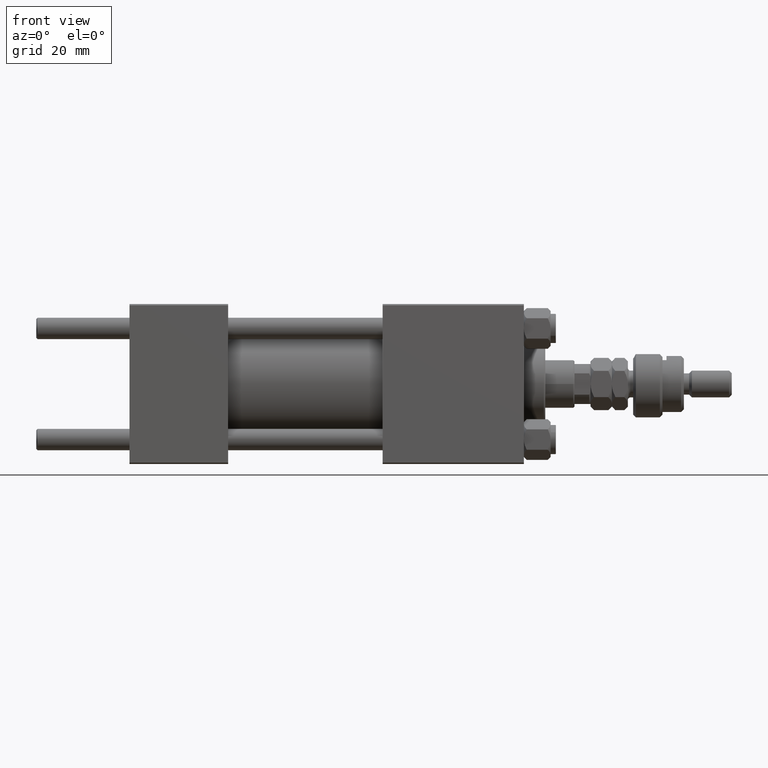
[diagram: clean part render]
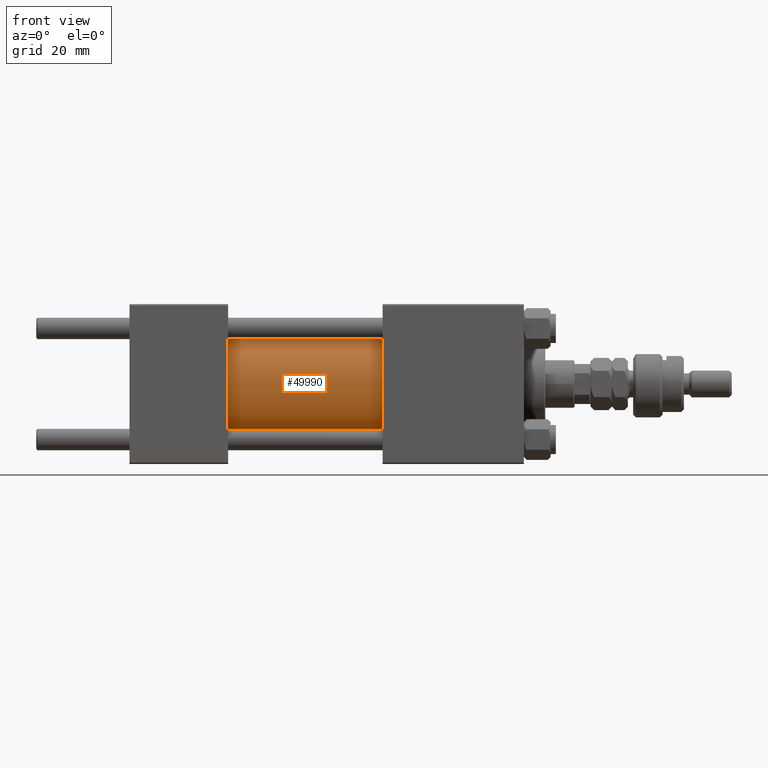
[diagram: same view with one face highlighted and labeled with its STEP entity id]
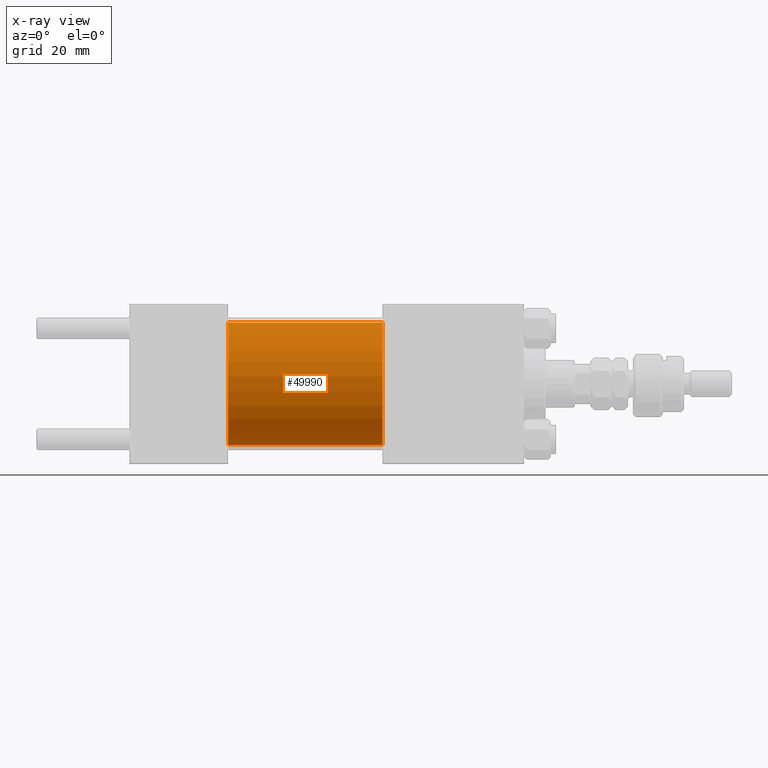
[diagram: x-ray of the same camera — body ghosted, the highlighted face saturated]
A machine part, front view. The second image highlights one B-rep face of the part: STEP entity #49990.
The next image is the same camera in x-ray: the body ghosted, the highlighted face saturated — about 0% of this face is hidden behind the body in this view.
In plain terms, the highlighted cylindrical surface (partial cylindrical patch) has radius 23 mm, axis along (-1, -0, -0).
Its self-contained STEP definition (entity closure, byte-faithful):
#830 = CIRCLE ( 'NONE', #30618, 23.00000000000000000 ) ;
#1299 = VERTEX_POINT ( 'NONE', #23040 ) ;
#1618 = CARTESIAN_POINT ( 'NONE',  ( 95.00000000000000000, 2.816687638038911957E-15, -23.00000000000000000 ) ) ;
#1888 = LINE ( 'NONE', #1618, #26978 ) ;
#4365 = VERTEX_POINT ( 'NONE', #24972 ) ;
#5190 = VERTEX_POINT ( 'NONE', #11388 ) ;
#6035 = LINE ( 'NONE', #22016, #19695 ) ;
#6630 = DIRECTION ( 'NONE',  ( 0.000000000000000000, 0.000000000000000000, 1.000000000000000000 ) ) ;
#7870 = DIRECTION ( 'NONE',  ( 0.000000000000000000, 0.000000000000000000, 1.000000000000000000 ) ) ;
#9431 = CARTESIAN_POINT ( 'NONE',  ( 37.00000000000000000, 2.816687638038911957E-15, -23.00000000000000000 ) ) ;
#11388 = CARTESIAN_POINT ( 'NONE',  ( 95.00000000000000000, 2.816687638038911957E-15, -23.00000000000000000 ) ) ;
#12054 = DIRECTION ( 'NONE',  ( 0.000000000000000000, 0.000000000000000000, -1.000000000000000000 ) ) ;
#12314 = DIRECTION ( 'NONE',  ( 1.000000000000000000, 0.000000000000000000, 0.000000000000000000 ) ) ;
#15081 = ORIENTED_EDGE ( 'NONE', *, *, #16976, .F. ) ;
#16976 = EDGE_CURVE ( 'NONE', #4365, #5190, #37686, .T. ) ;
#17627 = DIRECTION ( 'NONE',  ( 1.000000000000000000, -0.000000000000000000, 0.000000000000000000 ) ) ;
#19476 = EDGE_LOOP ( 'NONE', ( #38615, #15081, #20054, #34319 ) ) ;
#19695 = VECTOR ( 'NONE', #49998, 1000.000000000000000 ) ;
#19981 = VERTEX_POINT ( 'NONE', #9431 ) ;
#20054 = ORIENTED_EDGE ( 'NONE', *, *, #52277, .T. ) ;
#22016 = CARTESIAN_POINT ( 'NONE',  ( 95.00000000000000000, 0.000000000000000000, 23.00000000000000000 ) ) ;
#23040 = CARTESIAN_POINT ( 'NONE',  ( 37.00000000000000000, 0.000000000000000000, 23.00000000000000000 ) ) ;
#23239 = AXIS2_PLACEMENT_3D ( 'NONE', #40308, #12314, #12054 ) ;
#24305 = CARTESIAN_POINT ( 'NONE',  ( 37.00000000000000000, 0.000000000000000000, 0.000000000000000000 ) ) ;
#24972 = CARTESIAN_POINT ( 'NONE',  ( 95.00000000000000000, 0.000000000000000000, 23.00000000000000000 ) ) ;
#26978 = VECTOR ( 'NONE', #39634, 1000.000000000000000 ) ;
#28115 = FACE_OUTER_BOUND ( 'NONE', #19476, .T. ) ;
#28890 = CYLINDRICAL_SURFACE ( 'NONE', #42630, 23.00000000000000000 ) ;
#30618 = AXIS2_PLACEMENT_3D ( 'NONE', #24305, #17627, #6630 ) ;
#34319 = ORIENTED_EDGE ( 'NONE', *, *, #49215, .T. ) ;
#37215 = EDGE_CURVE ( 'NONE', #5190, #19981, #1888, .T. ) ;
#37686 = CIRCLE ( 'NONE', #23239, 23.00000000000000000 ) ;
#38615 = ORIENTED_EDGE ( 'NONE', *, *, #37215, .F. ) ;
#39634 = DIRECTION ( 'NONE',  ( -1.000000000000000000, -0.000000000000000000, -0.000000000000000000 ) ) ;
#40308 = CARTESIAN_POINT ( 'NONE',  ( 95.00000000000000000, 0.000000000000000000, 0.000000000000000000 ) ) ;
#42630 = AXIS2_PLACEMENT_3D ( 'NONE', #44896, #45413, #7870 ) ;
#44896 = CARTESIAN_POINT ( 'NONE',  ( 95.00000000000000000, 0.000000000000000000, 0.000000000000000000 ) ) ;
#45413 = DIRECTION ( 'NONE',  ( -1.000000000000000000, -0.000000000000000000, -0.000000000000000000 ) ) ;
#49215 = EDGE_CURVE ( 'NONE', #1299, #19981, #830, .T. ) ;
#49990 = ADVANCED_FACE ( 'NONE', ( #28115 ), #28890, .T. ) ;
#49998 = DIRECTION ( 'NONE',  ( -1.000000000000000000, -0.000000000000000000, -0.000000000000000000 ) ) ;
#52277 = EDGE_CURVE ( 'NONE', #4365, #1299, #6035, .T. ) ;